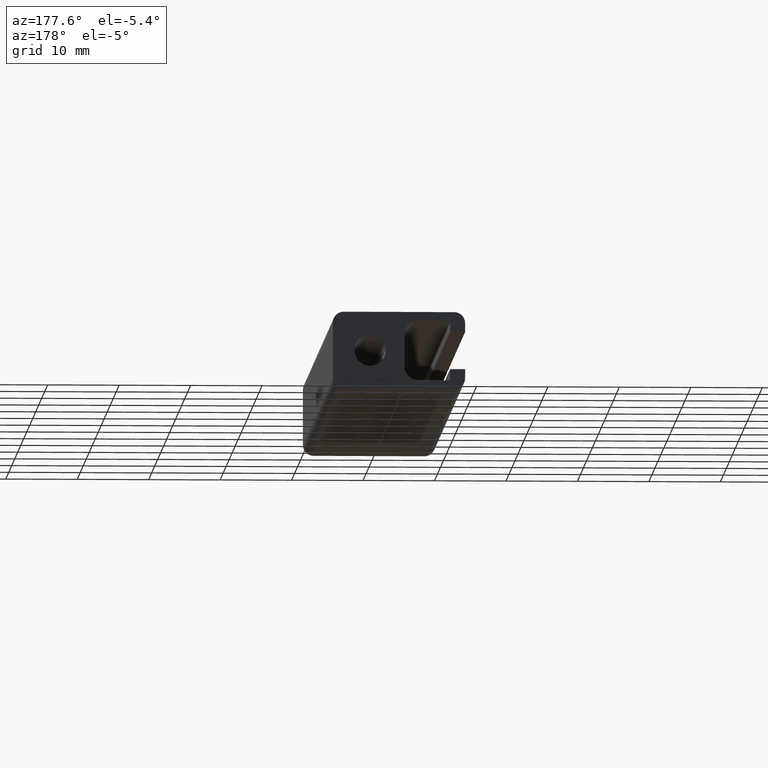
[diagram: clean part render]
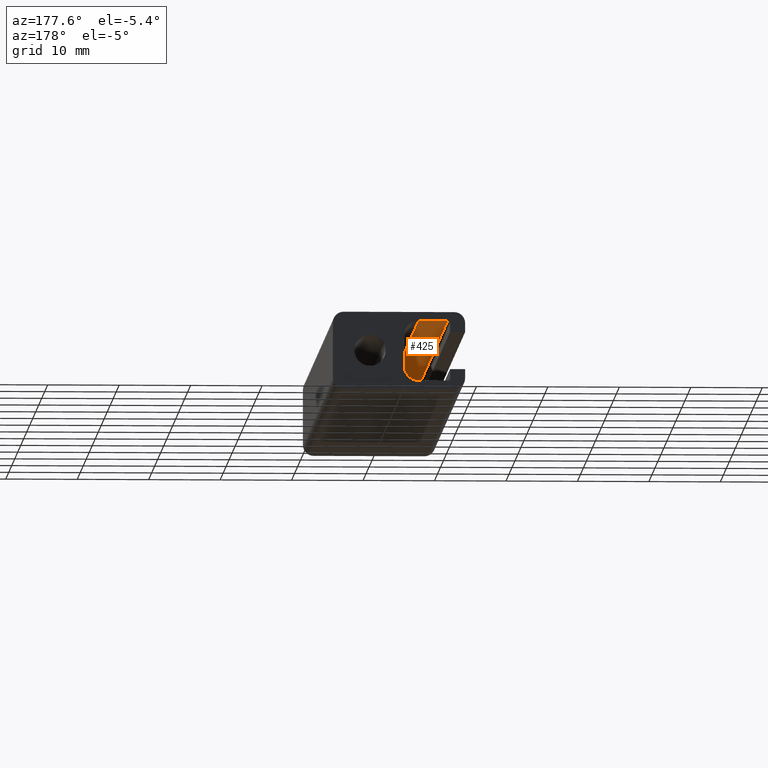
[diagram: same view with one face highlighted and labeled with its STEP entity id]
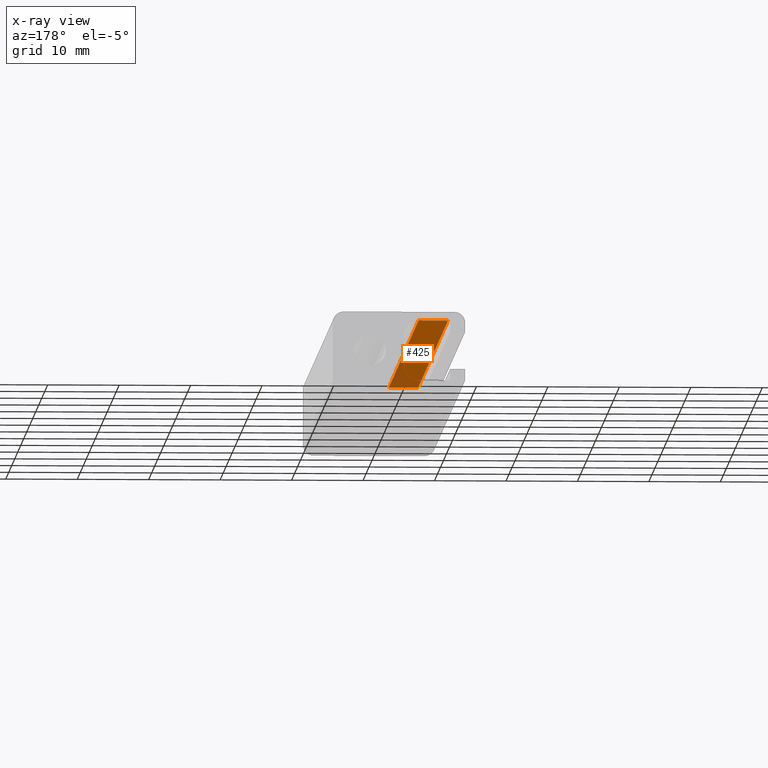
[diagram: x-ray of the same camera — body ghosted, the highlighted face saturated]
A machine part, auxiliary view. The second image highlights one B-rep face of the part: STEP entity #425.
The next image is the same camera in x-ray: the body ghosted, the highlighted face saturated — about 22% of this face is hidden behind the body in this view.
In plain terms, the highlighted planar face has unit normal (0, 0, -1).
Its self-contained STEP definition (entity closure, byte-faithful):
#15=LINE('',#627,#59);
#16=LINE('',#629,#60);
#17=LINE('',#631,#61);
#18=LINE('',#632,#62);
#59=VECTOR('',#500,4.09999999999968);
#60=VECTOR('',#501,100.);
#61=VECTOR('',#502,4.09999999999968);
#62=VECTOR('',#503,100.);
#103=PLANE('',#452);
#121=FACE_OUTER_BOUND('',#145,.T.);
#145=EDGE_LOOP('',(#293,#294,#295,#296));
#189=VERTEX_POINT('',#625);
#190=VERTEX_POINT('',#626);
#191=VERTEX_POINT('',#628);
#192=VERTEX_POINT('',#630);
#231=EDGE_CURVE('',#189,#190,#15,.T.);
#232=EDGE_CURVE('',#189,#191,#16,.T.);
#233=EDGE_CURVE('',#192,#191,#17,.T.);
#234=EDGE_CURVE('',#190,#192,#18,.T.);
#293=ORIENTED_EDGE('',*,*,#231,.F.);
#294=ORIENTED_EDGE('',*,*,#232,.T.);
#295=ORIENTED_EDGE('',*,*,#233,.F.);
#296=ORIENTED_EDGE('',*,*,#234,.F.);
#425=ADVANCED_FACE('',(#121),#103,.T.);
#452=AXIS2_PLACEMENT_3D('',#624,#498,#499);
#498=DIRECTION('center_axis',(5.54569940105487E-13,0.,-1.));
#499=DIRECTION('ref_axis',(-1.,0.,-5.54578605260758E-13));
#500=DIRECTION('',(1.,0.,5.54569940105487E-13));
#501=DIRECTION('',(0.,1.,0.));
#502=DIRECTION('',(-1.,0.,-5.54569940105487E-13));
#503=DIRECTION('',(0.,1.,0.));
#624=CARTESIAN_POINT('Origin',(-2.75000000000022,0.,4.20000000000073));
#625=CARTESIAN_POINT('',(-6.8499999999999,0.,4.19999999999845));
#626=CARTESIAN_POINT('',(-2.75000000000022,0.,4.20000000000073));
#627=CARTESIAN_POINT('',(-6.8499999999999,0.,4.19999999999845));
#628=CARTESIAN_POINT('',(-6.8499999999999,100.,4.19999999999845));
#629=CARTESIAN_POINT('',(-6.8499999999999,0.,4.19999999999845));
#630=CARTESIAN_POINT('',(-2.75000000000022,100.,4.20000000000073));
#631=CARTESIAN_POINT('',(-6.8499999999999,100.,4.19999999999845));
#632=CARTESIAN_POINT('',(-2.75000000000022,0.,4.20000000000073));